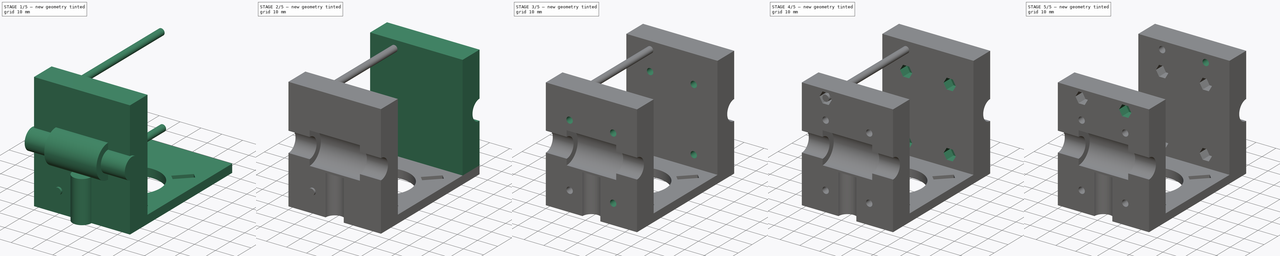
[diagram: build sequence overview — one tinted view per stage of 5, left to right]
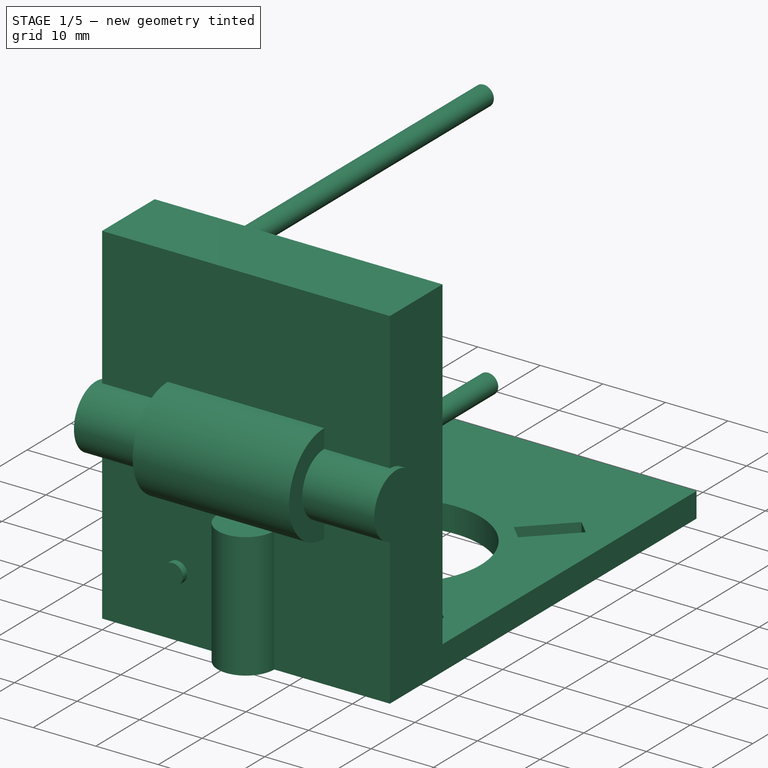
[diagram: stage 1 of 5 — iso view after this stage's code; geometry added in this stage tinted green]
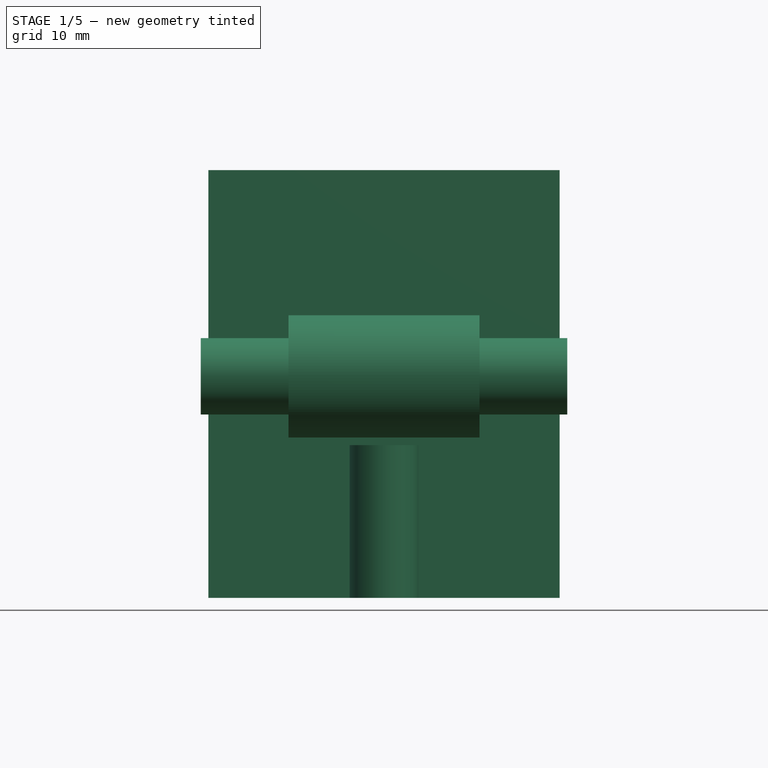
[diagram: stage 1 of 5 — front view after this stage's code; geometry added in this stage tinted green]
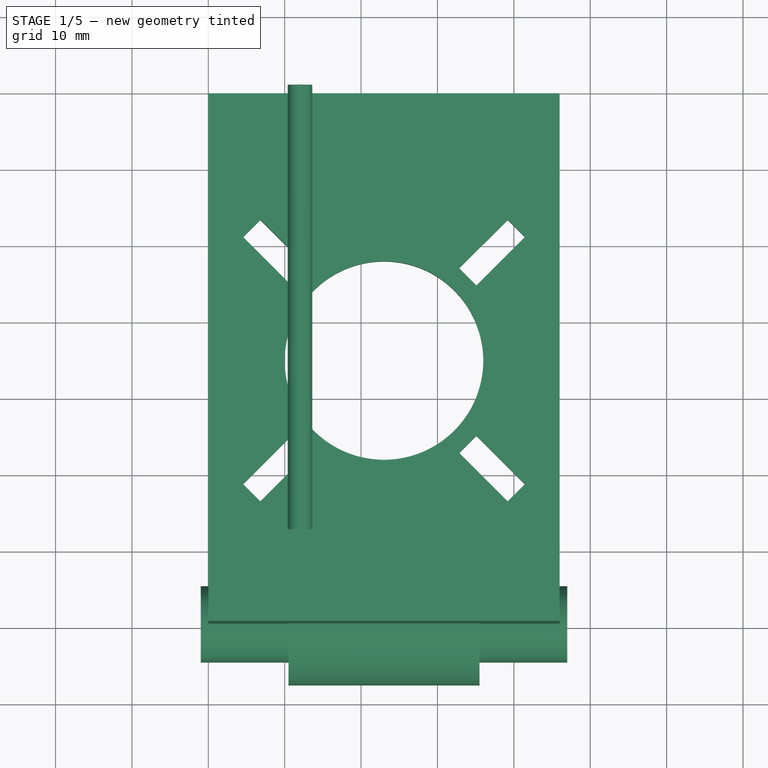
[diagram: stage 1 of 5 — top view after this stage's code; geometry added in this stage tinted green]
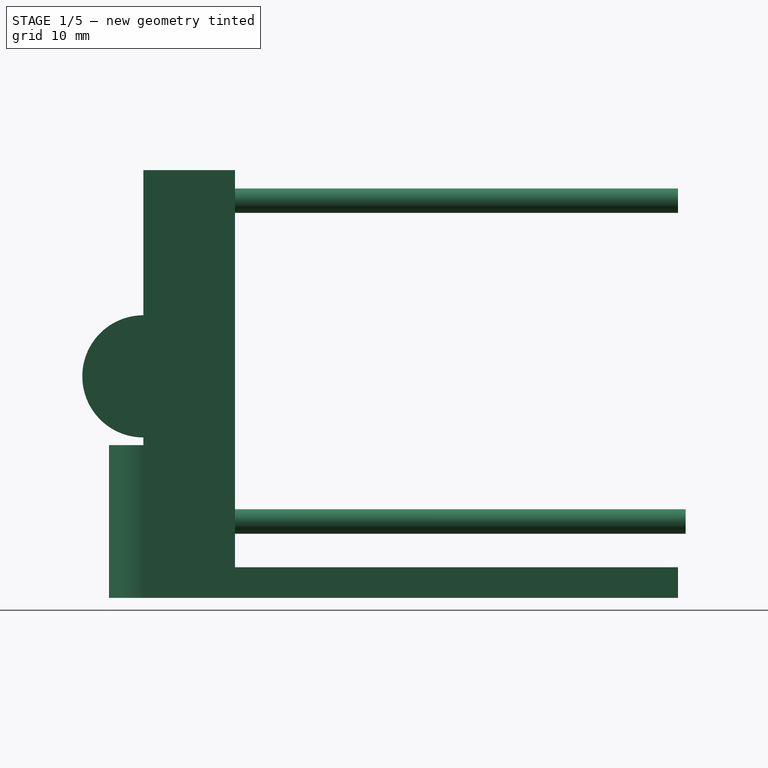
[diagram: stage 1 of 5 — right view after this stage's code; geometry added in this stage tinted green]
FCSTD DOCUMENT  (FreeCAD 0.14R3702 (Git))
Label: carro_eje_x
License: CC-BY 3.0
LicenseURL: http://creativecommons.org/licenses/by/3.0/
objects: Part::Cut×20, Part::Cylinder×12, Part::Prism×8, Part::Box×2, Part::MultiFuse×2, Sketcher::SketchObject×1, PartDesign::Pad×1
note: 47 computed .brp shape members not serialized (recipe doc carries the construction recipe); baked Part::Feature solids carry a one-line shape summary decoded from their .brp

FEATURE [Sketcher::SketchObject] Sketch
  sketch-geometry (21):
    g0: LineSegment StartX=0 StartY=0 StartZ=0 EndX=46 EndY=0 EndZ=0
    g1: LineSegment StartX=46 StartY=0 StartZ=0 EndX=46 EndY=70 EndZ=0
    g2: LineSegment StartX=46 StartY=70 StartZ=0 EndX=0 EndY=70 EndZ=0
    g3: LineSegment StartX=0 StartY=70 StartZ=0 EndX=0 EndY=0 EndZ=0
    g4: Circle CenterX=23 CenterY=35 CenterZ=0 NormalX=0 NormalY=0 NormalZ=1 Radius=13
    g5: LineSegment StartX=39.19 StartY=53.4527 StartZ=0 EndX=32.826 EndY=47.0888 EndZ=0
    g6: LineSegment StartX=32.826 StartY=47.0888 StartZ=0 EndX=35.0888 EndY=44.826 EndZ=0
    g7: LineSegment StartX=35.0888 StartY=44.826 StartZ=0 EndX=41.4527 EndY=51.19 EndZ=0
    g8: LineSegment StartX=41.4527 StartY=51.19 StartZ=0 EndX=39.19 EndY=53.4527 EndZ=0
    g9: LineSegment StartX=10.9112 StartY=44.826 StartZ=0 EndX=13.174 EndY=47.0888 EndZ=0
    g10: LineSegment StartX=13.174 StartY=47.0888 StartZ=0 EndX=6.81 EndY=53.4527 EndZ=0
    g11: LineSegment StartX=6.81 StartY=53.4527 StartZ=0 EndX=4.54726 EndY=51.19 EndZ=0
    g12: LineSegment StartX=4.54726 StartY=51.19 StartZ=0 EndX=10.9112 EndY=44.826 EndZ=0
    g13: LineSegment StartX=4.54726 StartY=18.81 StartZ=0 EndX=10.9112 EndY=25.174 EndZ=0
    g14: LineSegment StartX=10.9112 StartY=25.174 StartZ=0 EndX=13.174 EndY=22.9112 EndZ=0
    g15: LineSegment StartX=13.174 StartY=22.9112 StartZ=0 EndX=6.81 EndY=16.5473 EndZ=0
    g16: LineSegment StartX=6.81 StartY=16.5473 StartZ=0 EndX=4.54726 EndY=18.81 EndZ=0
    g17: LineSegment StartX=39.19 StartY=16.5473 StartZ=0 EndX=32.826 EndY=22.9112 EndZ=0
    g18: LineSegment StartX=32.826 StartY=22.9112 StartZ=0 EndX=35.0888 EndY=25.174 EndZ=0
    g19: LineSegment StartX=35.0888 StartY=25.174 StartZ=0 EndX=41.4527 EndY=18.81 EndZ=0
    g20: LineSegment StartX=41.4527 StartY=18.81 StartZ=0 EndX=39.19 EndY=16.5473 EndZ=0
  constraints (62):
    c: Coincident(g0,g1)
    c: Coincident(g1,g2)
    c: Coincident(g2,g3)
    c: Coincident(g3,g0)
    c: Horizontal(g0)
    c: Horizontal(g2)
    c: Vertical(g1)
    c: Vertical(g3)
    c: Coincident(g0,g-1)
    c: Distance(g0) = 46
    c: Distance(g1) = 70
    c: Radius(g4) = 13
    c: DistanceY(g-1,g4) = 35
    c: DistanceX(g-1,g4) = 23
    c: Coincident(g5,g6)
    c: Coincident(g6,g7)
    c: Coincident(g7,g8)
    c: Coincident(g8,g5)
    c: Coincident(g9,g10)
    c: Coincident(g10,g11)
    c: Coincident(g11,g12)
    c: Coincident(g12,g9)
    c: Coincident(g13,g14)
    c: Coincident(g14,g15)
    c: Coincident(g15,g16)
    c: Coincident(g16,g13)
    c: Coincident(g17,g18)
    c: Coincident(g18,g19)
    c: Coincident(g19,g20)
    c: Coincident(g20,g17)
    c: Angle(g0,g15) = 0.785398
    c: Distance(g15) = 9
    c: Perpendicular(g16,g15)
    c: Distance(g16) = 3.2
    c: Parallel(g14,g16)
    c: Parallel(g13,g15)
    c: Parallel(g13,g7)
    c: Parallel(g14,g6)
    c: Parallel(g6,g8)
    c: Distance(g8) = 3.2
    c: Distance(g5) = 9
    c: DistanceY(g13,g11) = 32.38
    c: DistanceX(g13,g11) = 0
    c: DistanceX(g10,g5) = 32.38
    c: DistanceY(g10,g5) = 0
    c: DistanceY(g7,g19) = -32.38
    c: DistanceX(g19,g7) = 0
    c: Parallel(g13,g11)
    c: Parallel(g11,g9)
    c: Parallel(g9,g5)
    c: Parallel(g7,g18)
    c: Parallel(g18,g20)
    c: Parallel(g16,g12)
    c: Parallel(g12,g10)
    c: Parallel(g8,g19)
    c: Parallel(g19,g17)
    c: DistanceY(g15,g17) = 0
    c: DistanceY(g14,g17) = 0
    c: DistanceX(g13,g9) = 0
    c: DistanceY(g13,g4) = 16.19
    c: DistanceX(g15,g4) = 16.19
    c: DistanceX(g15,g10) = 0
FEATURE [PartDesign::Pad] Pad
  Length = 4
  Length2 = 100
  Sketch = -> Sketch
  Type = 0
FEATURE [Part::Box] Box  label="Cubo"
  Height = 56
  Length = 46
  Width = 12
FEATURE [Part::MultiFuse] Fusion
  Shapes = -> [Pad,Box]
FEATURE [Part::Cylinder] Cylinder  label="Cilindro"
  Angle = 360
  Height = 20
  Placement = pos=(23,0,0) rot=(0,0,1;0rad)
  Radius = 4.5
FEATURE [Part::Cylinder] Cylinder002  label="Cilindro002"
  Angle = 360
  Height = 48
  Placement = pos=(-1,0,29) rot=(0,1,0;1.5708rad)
  Radius = 5
FEATURE [Part::Cylinder] Cylinder004  label="Cilindro004"
  Angle = 360
  Height = 25
  Placement = pos=(10.5,0,29) rot=(0,1,0;1.5708rad)
  Radius = 8
FEATURE [Part::Cylinder] Cylinder006  label="Cilindro006"
  Angle = 360
  Height = 72
  Placement = pos=(12,71,10) rot=(1,0,0;1.5708rad)
  Radius = 1.6
FEATURE [Part::Prism] Prism004  label="Prisma004"
  Circumradius = 3.1
  Height = 5
  Placement = pos=(12,5,52) rot=(1,0,0;1.5708rad)
  Polygon = 6
FEATURE [Part::Cylinder] Cylinder010  label="Cilindro010"
  Angle = 360
  Height = 70
  Placement = pos=(12,70,52) rot=(1,0,0;1.5708rad)
  Radius = 1.6
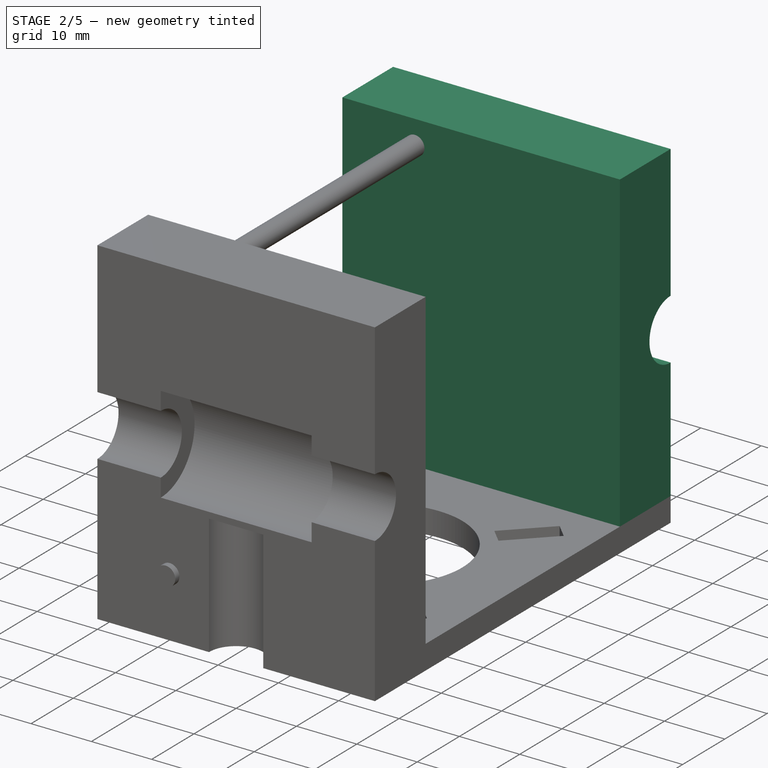
[diagram: stage 2 of 5 — iso view after this stage's code; geometry added in this stage tinted green]
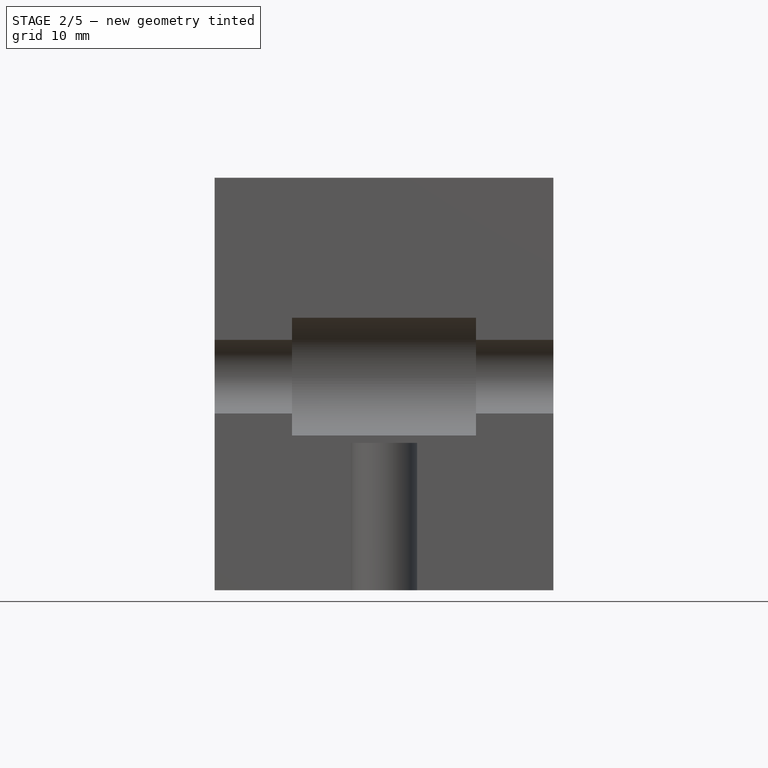
[diagram: stage 2 of 5 — front view after this stage's code; geometry added in this stage tinted green]
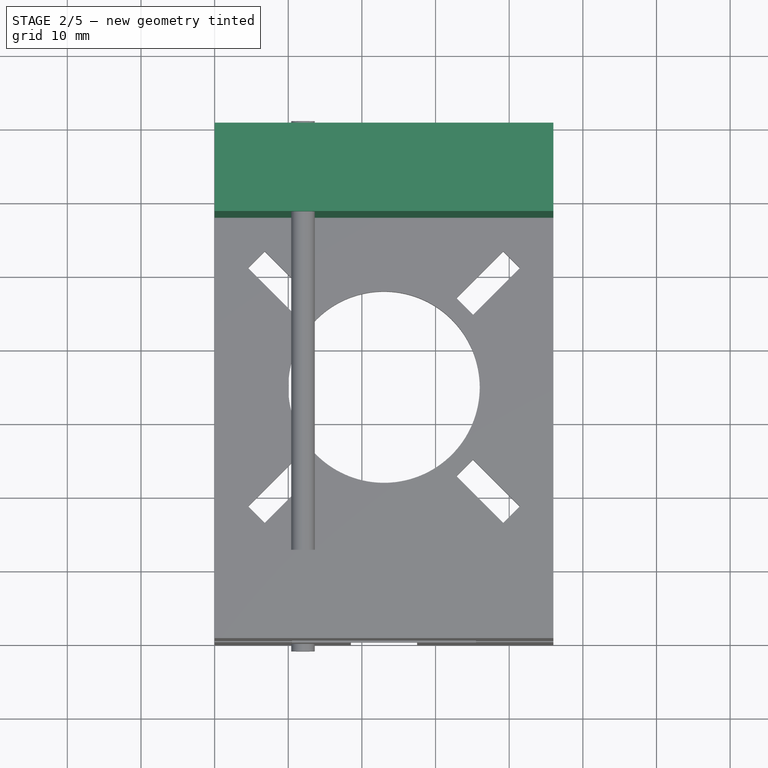
[diagram: stage 2 of 5 — top view after this stage's code; geometry added in this stage tinted green]
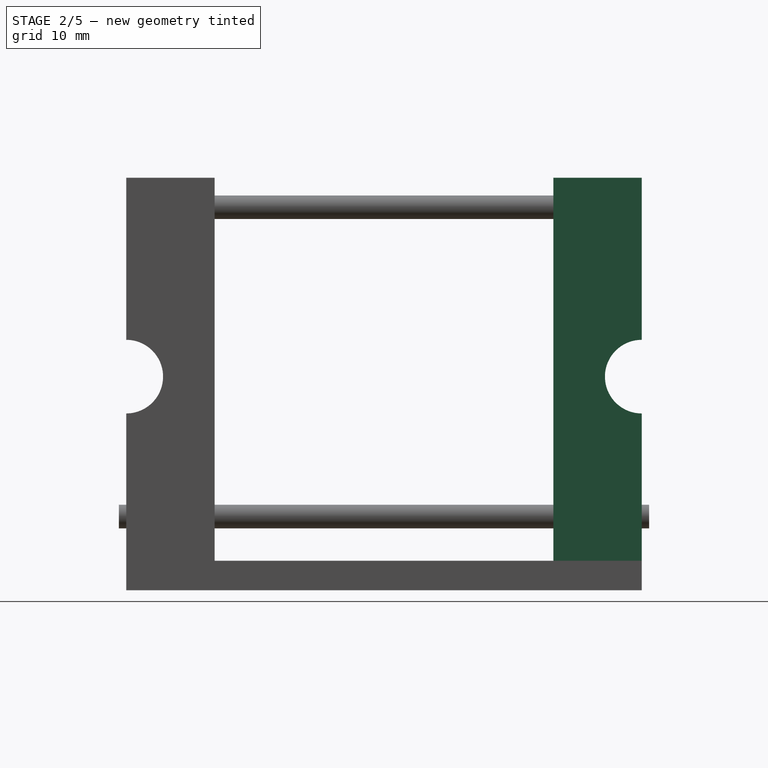
[diagram: stage 2 of 5 — right view after this stage's code; geometry added in this stage tinted green]
FEATURE [Part::Box] Box001  label="Cubo001"
  Height = 56
  Length = 46
  Placement = pos=(0,58,0) rot=(0,0,1;0rad)
  Width = 12
FEATURE [Part::MultiFuse] Fusion001
  Shapes = -> [Fusion,Box001]
FEATURE [Part::Cylinder] Cylinder001  label="Cilindro001"
  Angle = 360
  Height = 20
  Placement = pos=(23,70,0) rot=(0,0,1;0rad)
  Radius = 4.5
FEATURE [Part::Cut] Cut
  Base = -> Fusion001
  Tool = -> Cylinder
FEATURE [Part::Cut] Cut001
  Base = -> Cut
  Tool = -> Cylinder001
FEATURE [Part::Cylinder] Cylinder003  label="Cilindro003"
  Angle = 360
  Height = 48
  Placement = pos=(-1,70,29) rot=(0,1,0;1.5708rad)
  Radius = 5
FEATURE [Part::Cut] Cut002
  Base = -> Cut001
  Tool = -> Cylinder002
FEATURE [Part::Cut] Cut003
  Base = -> Cut002
  Tool = -> Cylinder003
FEATURE [Part::Cut] Cut004
  Base = -> Cut003
  Tool = -> Cylinder004
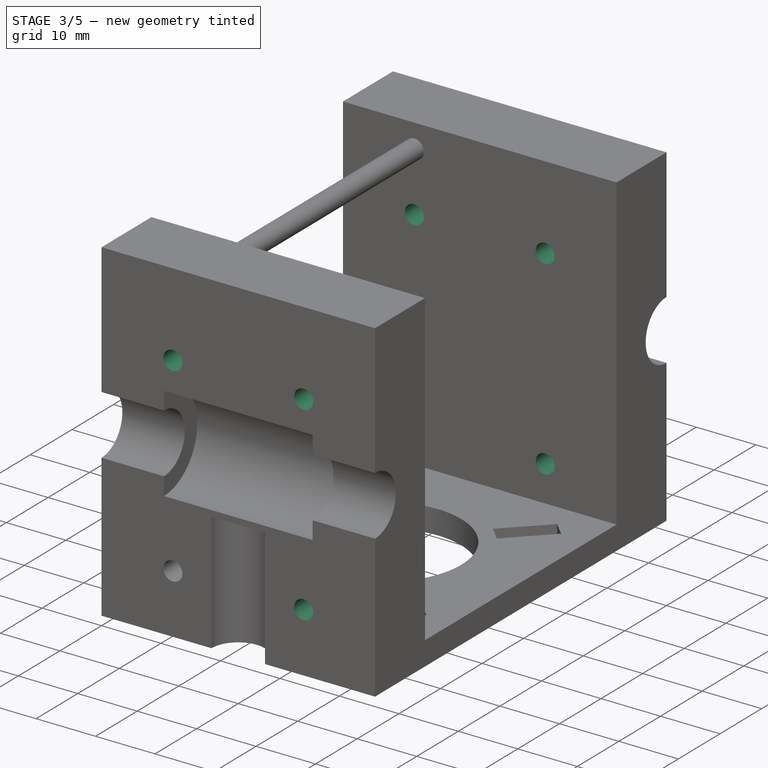
[diagram: stage 3 of 5 — iso view after this stage's code; geometry added in this stage tinted green]
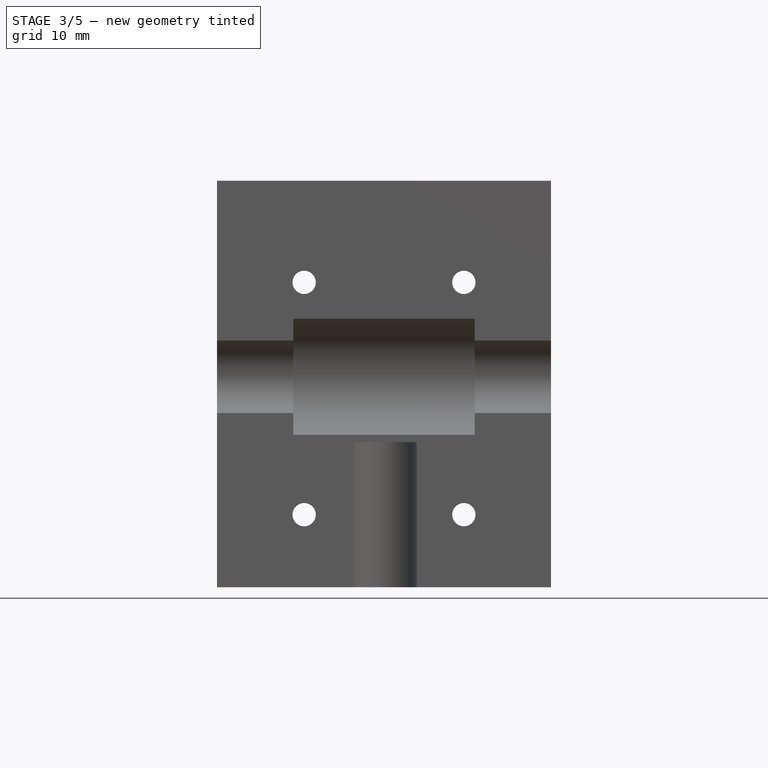
[diagram: stage 3 of 5 — front view after this stage's code; geometry added in this stage tinted green]
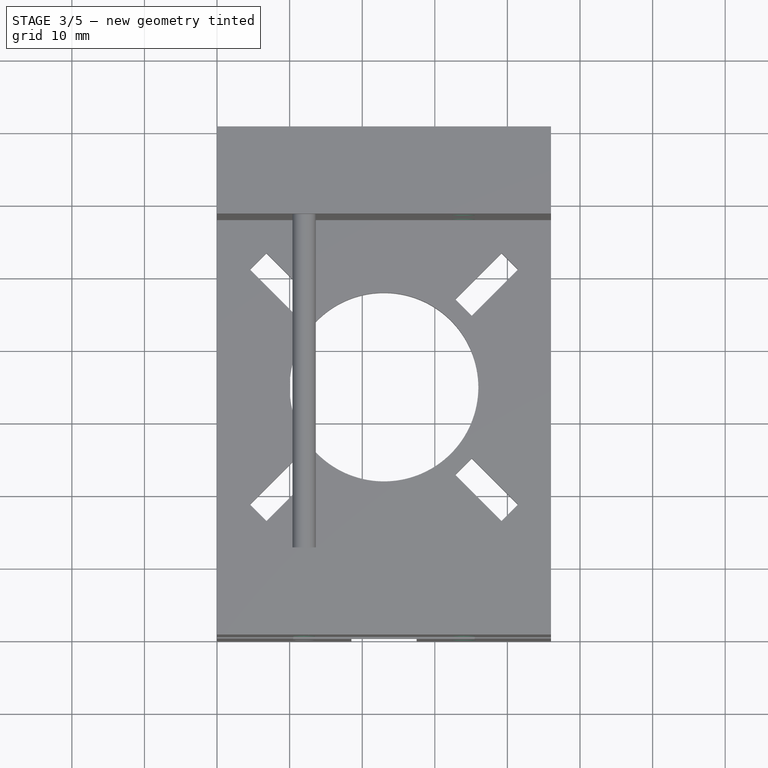
[diagram: stage 3 of 5 — top view after this stage's code; geometry added in this stage tinted green]
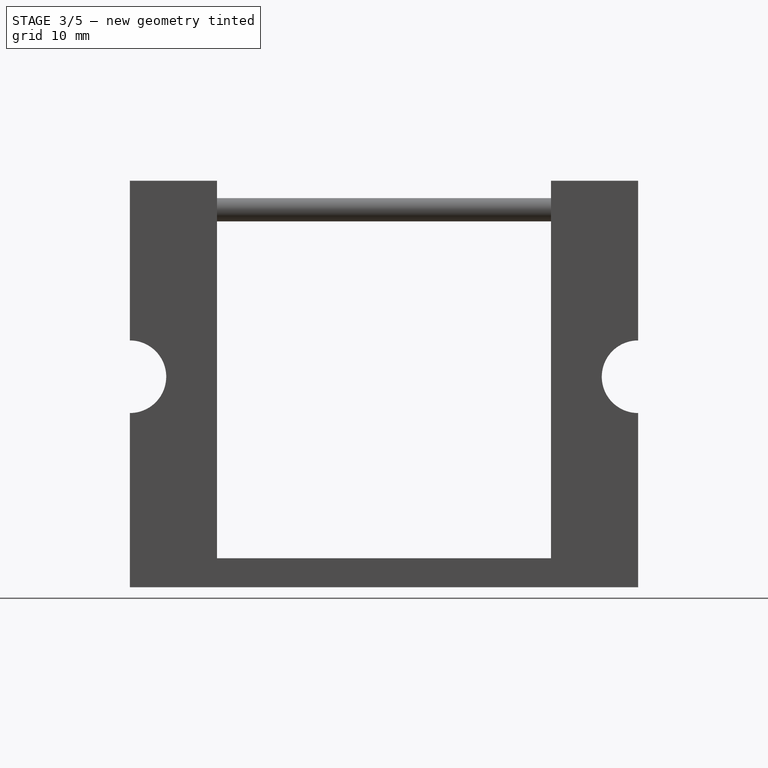
[diagram: stage 3 of 5 — right view after this stage's code; geometry added in this stage tinted green]
FEATURE [Part::Cylinder] Cylinder005  label="Cilindro005"
  Angle = 360
  Height = 25
  Placement = pos=(10.5,70,29) rot=(0,1,0;1.5708rad)
  Radius = 8
FEATURE [Part::Cut] Cut005
  Base = -> Cut004
  Tool = -> Cylinder005
FEATURE [Part::Cylinder] Cylinder007  label="Cilindro007"
  Angle = 360
  Height = 72
  Placement = pos=(34,71,10) rot=(1,0,0;1.5708rad)
  Radius = 1.6
FEATURE [Part::Cylinder] Cylinder008  label="Cilindro008"
  Angle = 360
  Height = 72
  Placement = pos=(12,71,42) rot=(1,0,0;1.5708rad)
  Radius = 1.6
FEATURE [Part::Cylinder] Cylinder009  label="Cilindro009"
  Angle = 360
  Height = 72
  Placement = pos=(34,71,42) rot=(1,0,0;1.5708rad)
  Radius = 1.6
FEATURE [Part::Cut] Cut006
  Base = -> Cut005
  Tool = -> Cylinder006
FEATURE [Part::Cut] Cut007
  Base = -> Cut006
  Tool = -> Cylinder007
FEATURE [Part::Cut] Cut008
  Base = -> Cut007
  Tool = -> Cylinder008
FEATURE [Part::Cut] Cut009
  Base = -> Cut008
  Tool = -> Cylinder009
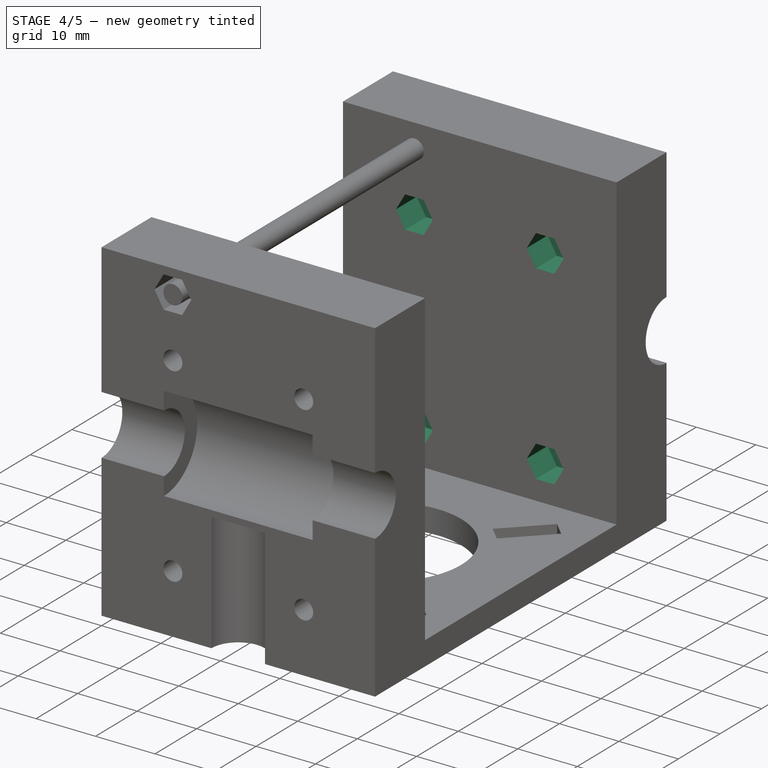
[diagram: stage 4 of 5 — iso view after this stage's code; geometry added in this stage tinted green]
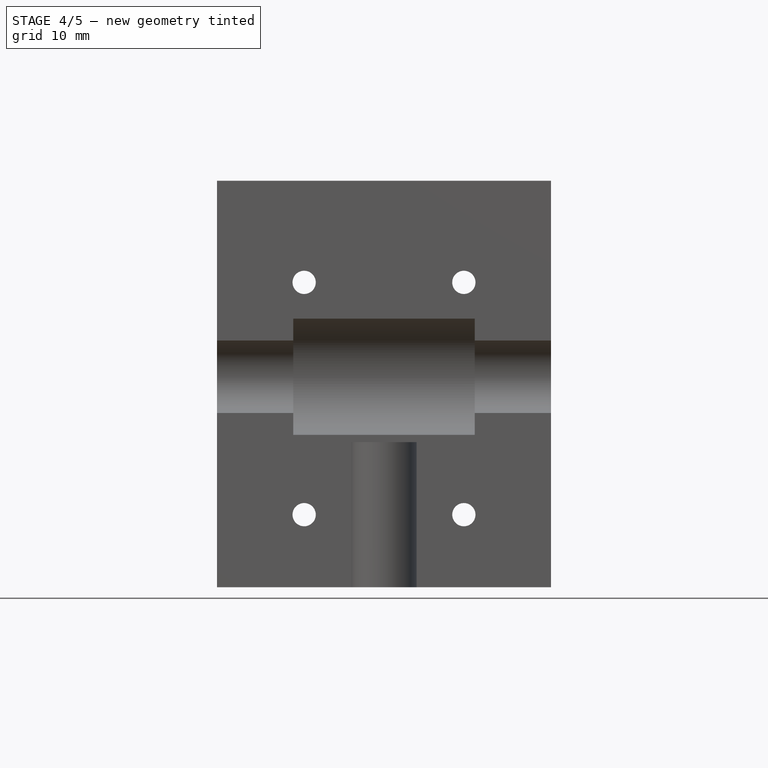
[diagram: stage 4 of 5 — front view after this stage's code; geometry added in this stage tinted green]
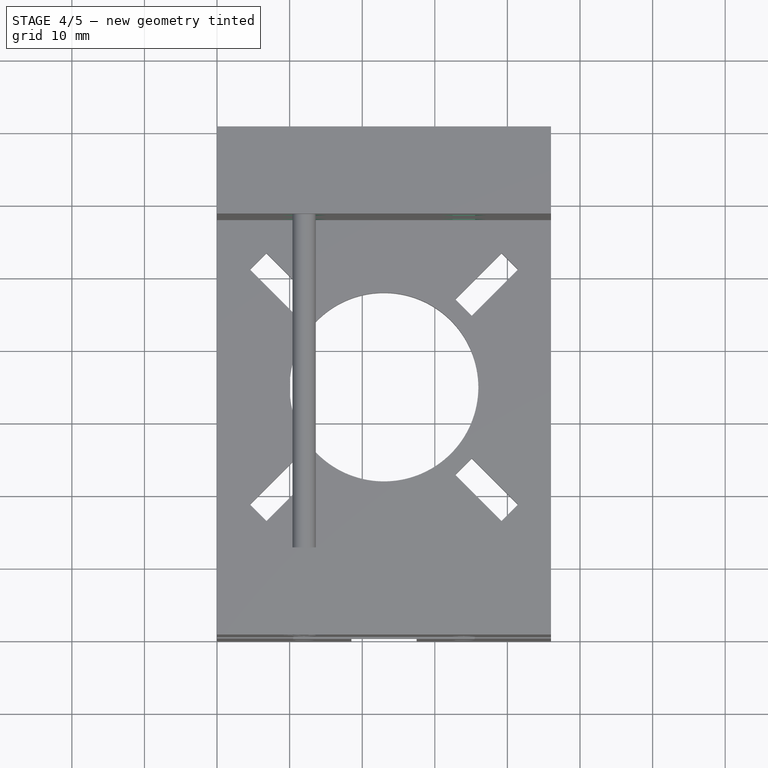
[diagram: stage 4 of 5 — top view after this stage's code; geometry added in this stage tinted green]
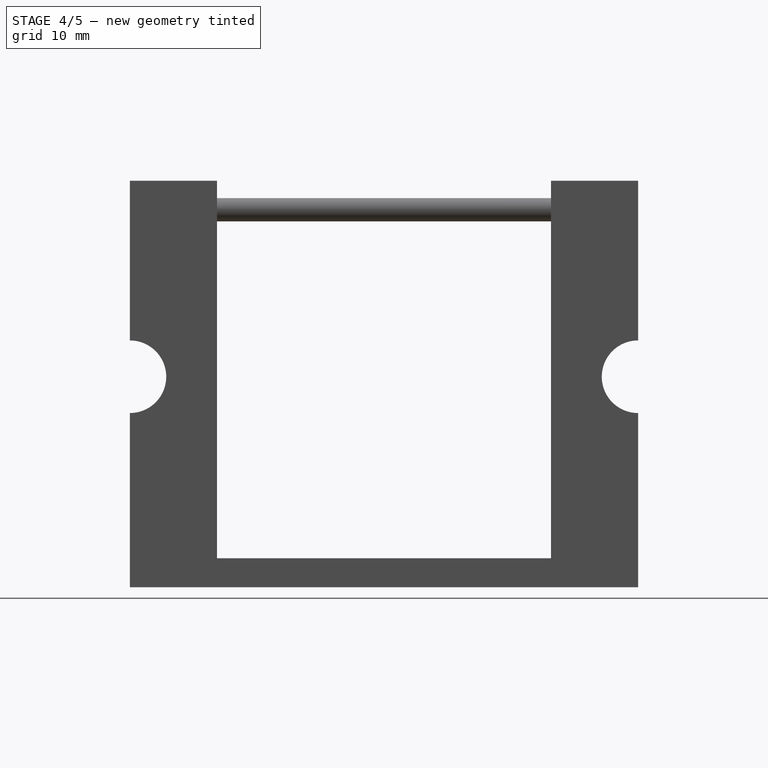
[diagram: stage 4 of 5 — right view after this stage's code; geometry added in this stage tinted green]
FEATURE [Part::Prism] Prism  label="Prisma"
  Circumradius = 3.1
  Height = 56
  Placement = pos=(12,63,10) rot=(1,0,0;1.5708rad)
  Polygon = 6
FEATURE [Part::Prism] Prism001  label="Prisma001"
  Circumradius = 3.1
  Height = 56
  Placement = pos=(34,63,10) rot=(1,0,0;1.5708rad)
  Polygon = 6
FEATURE [Part::Prism] Prism002  label="Prisma002"
  Circumradius = 3.1
  Height = 56
  Placement = pos=(12,63,42) rot=(1,0,0;1.5708rad)
  Polygon = 6
FEATURE [Part::Prism] Prism003  label="Prisma003"
  Circumradius = 3.1
  Height = 56
  Placement = pos=(34,63,42) rot=(1,0,0;1.5708rad)
  Polygon = 6
FEATURE [Part::Cut] Cut010
  Base = -> Cut009
  Tool = -> Prism
FEATURE [Part::Cut] Cut011
  Base = -> Cut010
  Tool = -> Prism001
FEATURE [Part::Cut] Cut012
  Base = -> Cut011
  Tool = -> Prism002
FEATURE [Part::Cut] Cut013
  Base = -> Cut012
  Tool = -> Prism003
FEATURE [Part::Cut] Cut014
  Base = -> Cut013
  Tool = -> Prism004
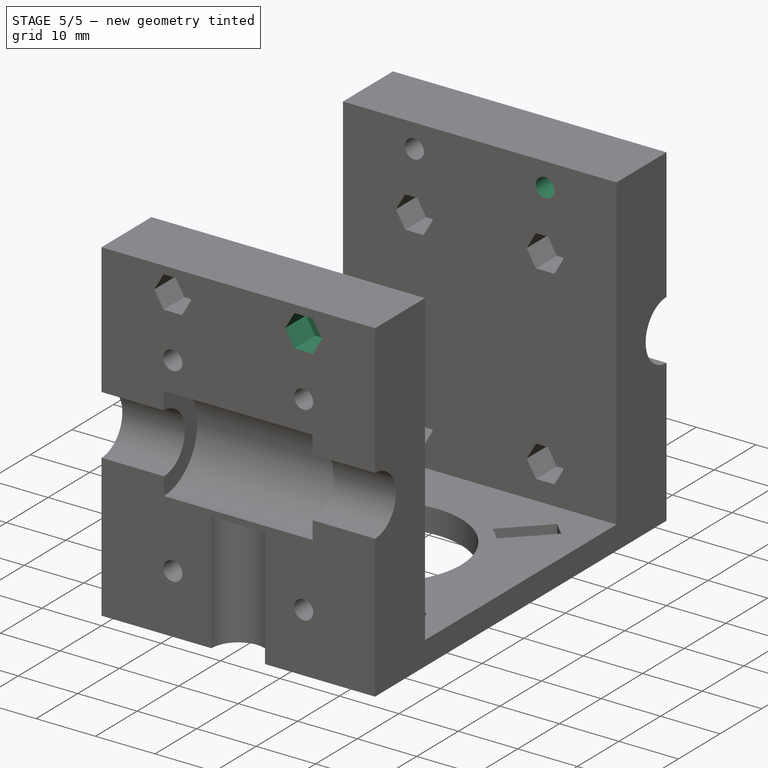
[diagram: stage 5 of 5 — iso view after this stage's code; geometry added in this stage tinted green]
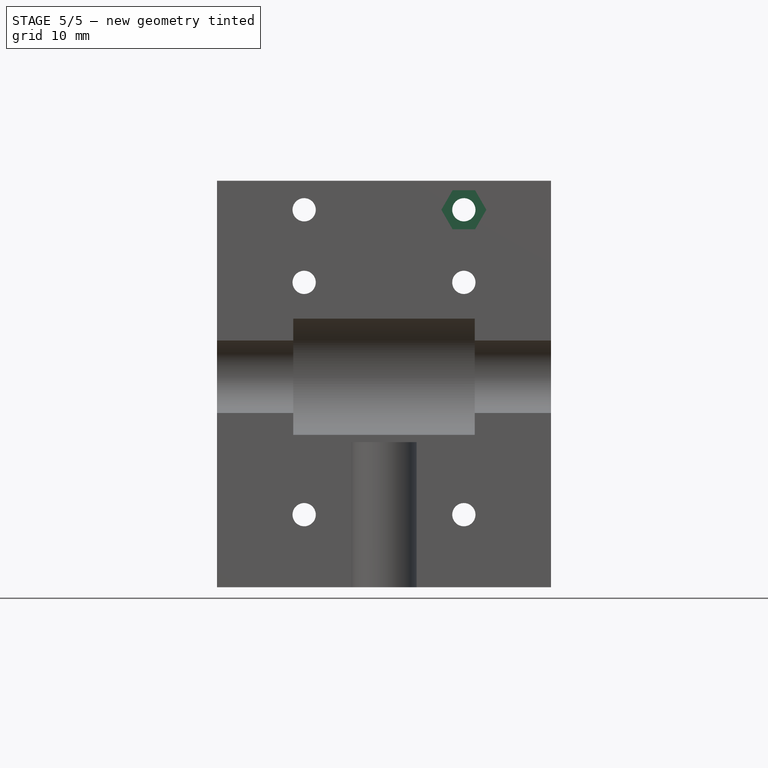
[diagram: stage 5 of 5 — front view after this stage's code; geometry added in this stage tinted green]
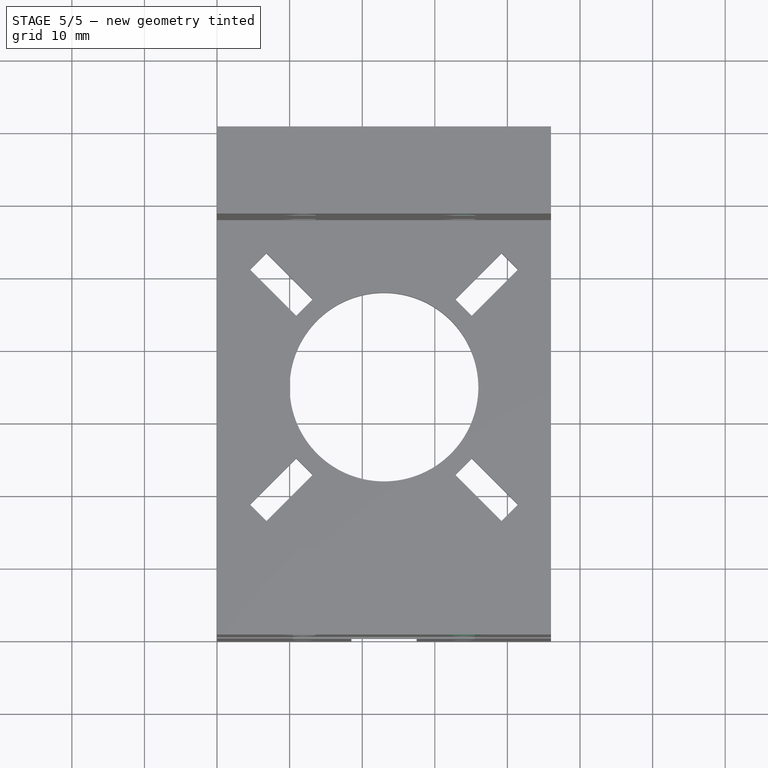
[diagram: stage 5 of 5 — top view after this stage's code; geometry added in this stage tinted green]
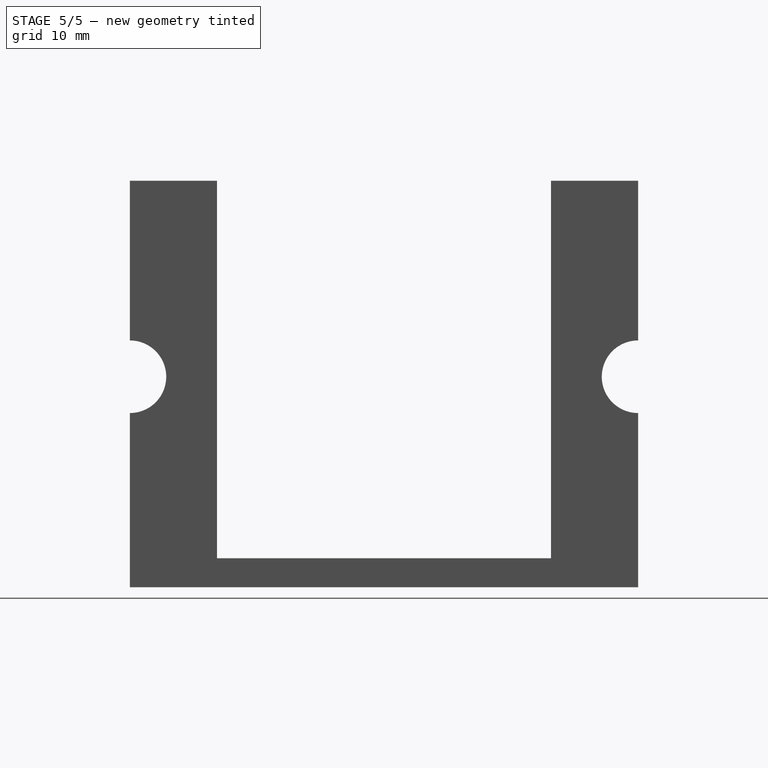
[diagram: stage 5 of 5 — right view after this stage's code; geometry added in this stage tinted green]
FEATURE [Part::Prism] Prism005  label="Prisma005"
  Circumradius = 3.1
  Height = 5
  Placement = pos=(34,5,52) rot=(1,0,0;1.5708rad)
  Polygon = 6
FEATURE [Part::Prism] Prism006  label="Prisma006"
  Circumradius = 3.1
  Height = 5
  Placement = pos=(12,70,52) rot=(1,0,0;1.5708rad)
  Polygon = 6
FEATURE [Part::Prism] Prism007  label="Prisma007"
  Circumradius = 3.1
  Height = 5
  Placement = pos=(34,70,52) rot=(1,0,0;1.5708rad)
  Polygon = 6
FEATURE [Part::Cut] Cut015
  Base = -> Cut014
  Tool = -> Prism005
FEATURE [Part::Cut] Cut016
  Base = -> Cut015
  Tool = -> Prism006
FEATURE [Part::Cut] Cut017
  Base = -> Cut016
  Tool = -> Prism007
FEATURE [Part::Cylinder] Cylinder011  label="Cilindro011"
  Angle = 360
  Height = 70
  Placement = pos=(34,70,52) rot=(1,0,0;1.5708rad)
  Radius = 1.6
FEATURE [Part::Cut] Cut018
  Base = -> Cut017
  Tool = -> Cylinder010
FEATURE [Part::Cut] Cut019
  Base = -> Cut018
  Tool = -> Cylinder011
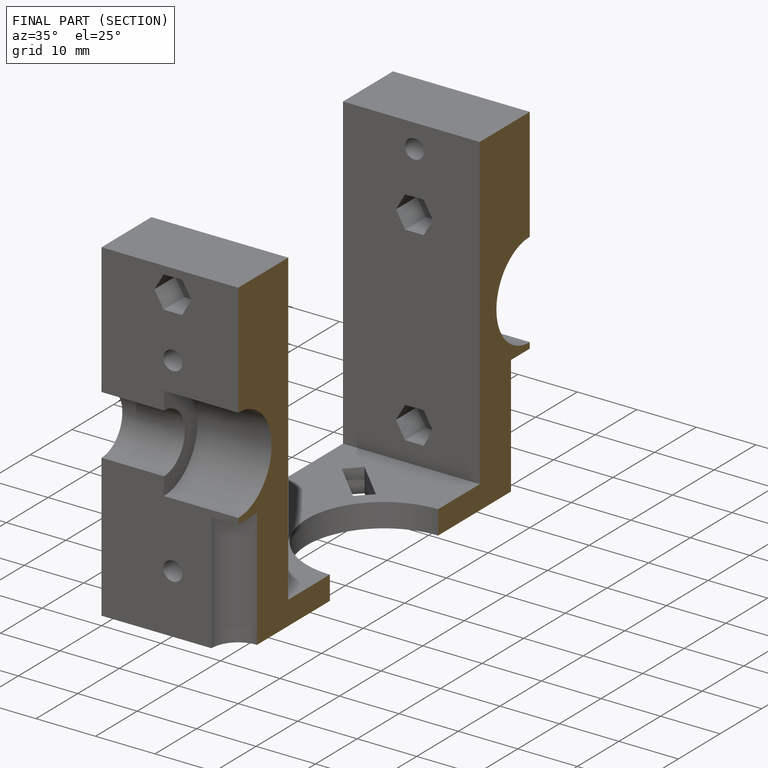
[diagram: finished part — half-section view (interior)]
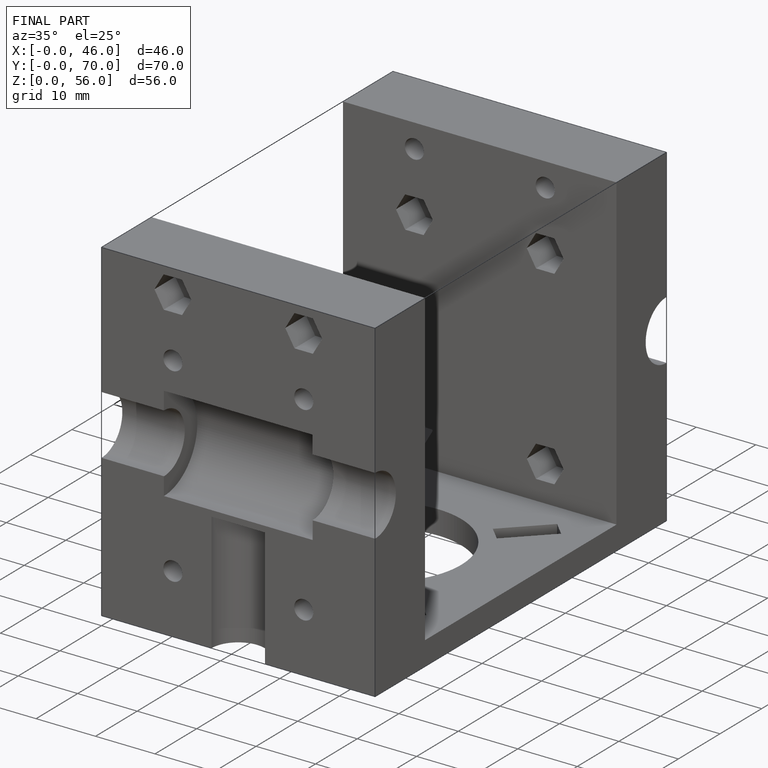
[diagram: finished part — iso view with bounding-box wireframe]
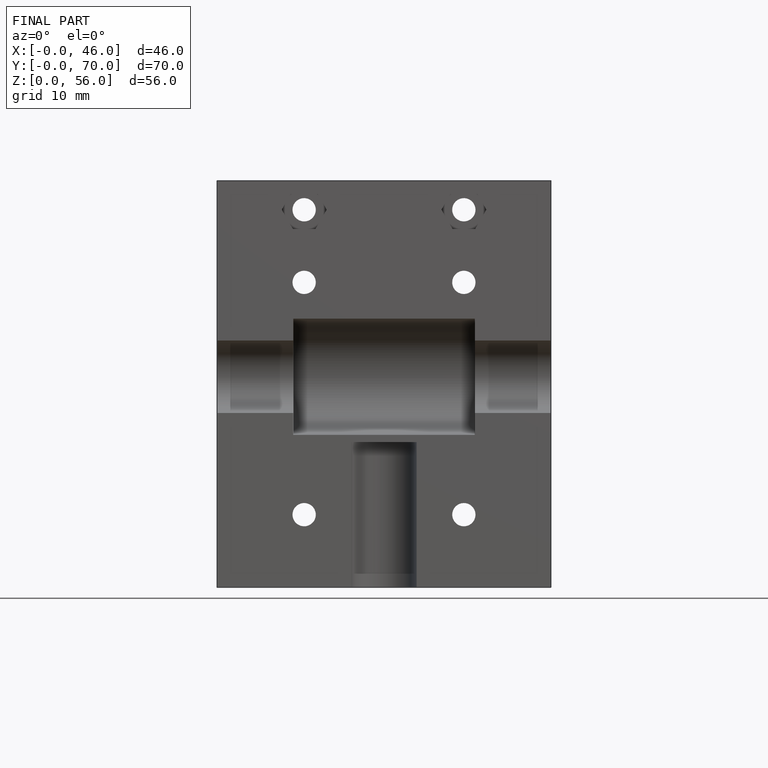
[diagram: finished part — front view with bounding-box wireframe]
